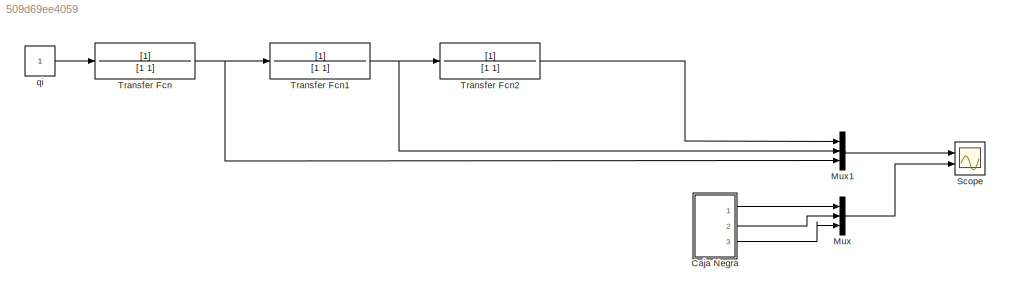
MODEL slx_509d69ee4059
KIND model
CONFIG AbsTol = auto
CONFIG EnableMultiTasking = off
CONFIG FixedStep = auto
CONFIG MaxStep = auto
CONFIG MinStep = auto
CONFIG RelTol = 1e-3
CONFIG SampleTimeConstraint = Unconstrained
CONFIG Solver = VariableStepAuto
CONFIG SolverName = VariableStepAuto
CONFIG StartTime = 0.0
CONFIG StopTime = 10.0
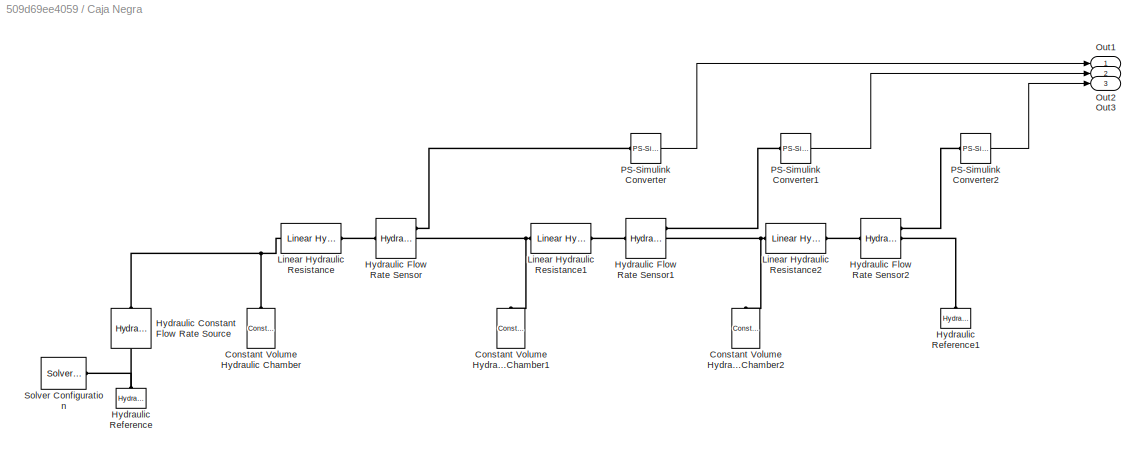
BLOCK [SubSystem] Caja Negra
  Ports = [0, 3]
  RequestExecContextInheritance = off
  Variant = off
BLOCK [Reference] Caja Negra/Constant Volume Hydraulic Chamber  REF=fl_lib/Hydraulic/Hydraulic Elements/Constant Volume
Hydraulic Chamber
  Ports = [0, 0, 0, 0, 0, 1]
  SourceBlock = fl_lib/Hydraulic/Hydraulic Elements/Constant Volume\nHydraulic Chamber
  SourceProductBaseCode = SS
  SourceProductName = Simscape
  SourceType = Constant Volume\nHydraulic Chamber
BLOCK [Reference] Caja Negra/Constant Volume Hydraulic Chamber1  REF=fl_lib/Hydraulic/Hydraulic Elements/Constant Volume
Hydraulic Chamber
  Ports = [0, 0, 0, 0, 0, 1]
  SourceBlock = fl_lib/Hydraulic/Hydraulic Elements/Constant Volume\nHydraulic Chamber
  SourceProductBaseCode = SS
  SourceProductName = Simscape
  SourceType = Constant Volume\nHydraulic Chamber
BLOCK [Reference] Caja Negra/Constant Volume Hydraulic Chamber2  REF=fl_lib/Hydraulic/Hydraulic Elements/Constant Volume
Hydraulic Chamber
  Ports = [0, 0, 0, 0, 0, 1]
  SourceBlock = fl_lib/Hydraulic/Hydraulic Elements/Constant Volume\nHydraulic Chamber
  SourceProductBaseCode = SS
  SourceProductName = Simscape
  SourceType = Constant Volume\nHydraulic Chamber
BLOCK [Reference] Caja Negra/Hydraulic Constant Flow Rate Source  REF=fl_lib/Hydraulic/Hydraulic Sources/Hydraulic Constant
Flow Rate Source
  Ports = [0, 0, 0, 0, 0, 1, 1]
  SourceBlock = fl_lib/Hydraulic/Hydraulic Sources/Hydraulic Constant\nFlow Rate Source
  SourceProductBaseCode = SS
  SourceProductName = Simscape
  SourceType = Hydraulic Constant\nFlow Rate Source
BLOCK [Reference] Caja Negra/Hydraulic Flow Rate Sensor  REF=fl_lib/Hydraulic/Hydraulic Sensors/Hydraulic Flow Rate
Sensor
  Ports = [0, 0, 0, 0, 0, 1, 3]
  SourceBlock = fl_lib/Hydraulic/Hydraulic Sensors/Hydraulic Flow Rate\nSensor
  SourceProductBaseCode = SS
  SourceProductName = Simscape
  SourceType = Hydraulic Flow Rate\nSensor
BLOCK [Reference] Caja Negra/Hydraulic Flow Rate Sensor1  REF=fl_lib/Hydraulic/Hydraulic Sensors/Hydraulic Flow Rate
Sensor
  Ports = [0, 0, 0, 0, 0, 1, 3]
  SourceBlock = fl_lib/Hydraulic/Hydraulic Sensors/Hydraulic Flow Rate\nSensor
  SourceProductBaseCode = SS
  SourceProductName = Simscape
  SourceType = Hydraulic Flow Rate\nSensor
BLOCK [Reference] Caja Negra/Hydraulic Flow Rate Sensor2  REF=fl_lib/Hydraulic/Hydraulic Sensors/Hydraulic Flow Rate
Sensor
  Ports = [0, 0, 0, 0, 0, 1, 3]
  SourceBlock = fl_lib/Hydraulic/Hydraulic Sensors/Hydraulic Flow Rate\nSensor
  SourceProductBaseCode = SS
  SourceProductName = Simscape
  SourceType = Hydraulic Flow Rate\nSensor
BLOCK [Reference] Caja Negra/Hydraulic Reference  REF=fl_lib/Hydraulic/Hydraulic Elements/Hydraulic Reference
  Ports = [0, 0, 0, 0, 0, 1]
  SourceBlock = fl_lib/Hydraulic/Hydraulic Elements/Hydraulic Reference
  SourceProductBaseCode = SS
  SourceProductName = Simscape
  SourceType = Hydraulic Reference
BLOCK [Reference] Caja Negra/Hydraulic Reference1  REF=fl_lib/Hydraulic/Hydraulic Elements/Hydraulic Reference
  Ports = [0, 0, 0, 0, 0, 1]
  SourceBlock = fl_lib/Hydraulic/Hydraulic Elements/Hydraulic Reference
  SourceProductBaseCode = SS
  SourceProductName = Simscape
  SourceType = Hydraulic Reference
BLOCK [Reference] Caja Negra/Linear Hydraulic Resistance  REF=fl_lib/Hydraulic/Hydraulic Elements/Linear Hydraulic
Resistance
  Ports = [0, 0, 0, 0, 0, 1, 1]
  SourceBlock = fl_lib/Hydraulic/Hydraulic Elements/Linear Hydraulic\nResistance
  SourceProductBaseCode = SS
  SourceProductName = Simscape
  SourceType = Linear Hydraulic\nResistance
BLOCK [Reference] Caja Negra/Linear Hydraulic Resistance1  REF=fl_lib/Hydraulic/Hydraulic Elements/Linear Hydraulic
Resistance
  Ports = [0, 0, 0, 0, 0, 1, 1]
  SourceBlock = fl_lib/Hydraulic/Hydraulic Elements/Linear Hydraulic\nResistance
  SourceProductBaseCode = SS
  SourceProductName = Simscape
  SourceType = Linear Hydraulic\nResistance
BLOCK [Reference] Caja Negra/Linear Hydraulic Resistance2  REF=fl_lib/Hydraulic/Hydraulic Elements/Linear Hydraulic
Resistance
  Ports = [0, 0, 0, 0, 0, 1, 1]
  SourceBlock = fl_lib/Hydraulic/Hydraulic Elements/Linear Hydraulic\nResistance
  SourceProductBaseCode = SS
  SourceProductName = Simscape
  SourceType = Linear Hydraulic\nResistance
BLOCK [Outport] Caja Negra/Out1
  IconDisplay = Port number
BLOCK [Outport] Caja Negra/Out2
  IconDisplay = Port number
  Port = 2
BLOCK [Outport] Caja Negra/Out3
  IconDisplay = Port number
  Port = 3
BLOCK [Reference] Caja Negra/PS-Simulink Converter  REF=nesl_utility/PS-Simulink
Converter
  Ports = [0, 1, 0, 0, 0, 1]
  SourceBlock = nesl_utility/PS-Simulink\nConverter
  SourceProductBaseCode = SS
  SourceProductName = Simscape
  SourceType = PS-Simulink\nConverter
BLOCK [Reference] Caja Negra/PS-Simulink Converter1  REF=nesl_utility/PS-Simulink
Converter
  Ports = [0, 1, 0, 0, 0, 1]
  SourceBlock = nesl_utility/PS-Simulink\nConverter
  SourceProductBaseCode = SS
  SourceProductName = Simscape
  SourceType = PS-Simulink\nConverter
BLOCK [Reference] Caja Negra/PS-Simulink Converter2  REF=nesl_utility/PS-Simulink
Converter
  Ports = [0, 1, 0, 0, 0, 1]
  SourceBlock = nesl_utility/PS-Simulink\nConverter
  SourceProductBaseCode = SS
  SourceProductName = Simscape
  SourceType = PS-Simulink\nConverter
BLOCK [Reference] Caja Negra/Solver Configuration  REF=nesl_utility/Solver
Configuration
  Ports = [0, 0, 0, 0, 0, 0, 1]
  SourceBlock = nesl_utility/Solver\nConfiguration
  SourceProductBaseCode = SS
  SourceProductName = Simscape
  SourceType = Solver\nConfiguration
BLOCK [Mux] Mux
  DisplayOption = bar
  Inputs = 3
  Ports = [3, 1]
BLOCK [Mux] Mux1
  DisplayOption = bar
  Inputs = 3
  Ports = [3, 1]
BLOCK [Scope] Scope
  NumInputPorts = 2
  Ports = [2]
  ScopeSpecificationString = Simulink.scopes.TimeScopeBlockCfg('CurrentConfiguration', extmgr.ConfigurationSet(extmgr.Configuration('Core','General UI',true),extmgr.Configuration('Core','Source UI',true),extmgr.Configuration('Sources','WiredSimulink',true),extmgr.Configuration('Visuals','Time Domain',true,'SerializedDisplays',{struct('MinYLimReal','-1.25','MaxYLimReal','11.25','YLabelReal','','MinYLimMag','0.00000','MaxYLimMa...<+1466ch>
BLOCK [TransferFcn] Transfer Fcn
  Denominator = [1 1]
BLOCK [TransferFcn] Transfer Fcn1
  Denominator = [1 1]
BLOCK [TransferFcn] Transfer Fcn2
  Denominator = [1 1]
BLOCK [Constant] qi
LINE Caja Negra/PS-Simulink Converter1:1 -> Caja Negra/Out2:1
LINE Caja Negra/PS-Simulink Converter2:1 -> Caja Negra/Out3:1
LINE Caja Negra/PS-Simulink Converter:1 -> Caja Negra/Out1:1
LINE Caja Negra:1 -> Mux:1
LINE Caja Negra:2 -> Mux:2
LINE Caja Negra:3 -> Mux:3
LINE Mux1:1 -> Scope:1
LINE Mux:1 -> Scope:2
NET Transfer Fcn1:1 -> Mux1:2, Transfer Fcn2:1
LINE Transfer Fcn2:1 -> Mux1:1
NET Transfer Fcn:1 -> Mux1:3, Transfer Fcn1:1
LINE qi:1 -> Transfer Fcn:1
PNET net1: Caja Negra/Constant Volume Hydraulic Chamber1:LConn1 -- Caja Negra/Hydraulic Flow Rate Sensor:RConn2 -- Caja Negra/Linear Hydraulic Resistance1:LConn1
PNET net2: Caja Negra/Constant Volume Hydraulic Chamber2:LConn1 -- Caja Negra/Hydraulic Flow Rate Sensor1:RConn2 -- Caja Negra/Linear Hydraulic Resistance2:LConn1
PNET net3: Caja Negra/Constant Volume Hydraulic Chamber:LConn1 -- Caja Negra/Hydraulic Constant Flow Rate Source:LConn1 -- Caja Negra/Linear Hydraulic Resistance:LConn1
PNET net4: Caja Negra/Hydraulic Constant Flow Rate Source:RConn1 -- Caja Negra/Hydraulic Reference:LConn1 -- Caja Negra/Solver Configuration:RConn1
PLINE Caja Negra/Hydraulic Flow Rate Sensor1:LConn1 -- Caja Negra/Linear Hydraulic Resistance1:RConn1
PLINE Caja Negra/Hydraulic Flow Rate Sensor1:RConn1 -- Caja Negra/PS-Simulink Converter1:LConn1
PLINE Caja Negra/Hydraulic Flow Rate Sensor2:LConn1 -- Caja Negra/Linear Hydraulic Resistance2:RConn1
PLINE Caja Negra/Hydraulic Flow Rate Sensor2:RConn1 -- Caja Negra/PS-Simulink Converter2:LConn1
PLINE Caja Negra/Hydraulic Flow Rate Sensor2:RConn2 -- Caja Negra/Hydraulic Reference1:LConn1
PLINE Caja Negra/Hydraulic Flow Rate Sensor:LConn1 -- Caja Negra/Linear Hydraulic Resistance:RConn1
PLINE Caja Negra/Hydraulic Flow Rate Sensor:RConn1 -- Caja Negra/PS-Simulink Converter:LConn1
note: NET lines group one-source signal fan-out (src -> all destinations, sorted); 1:1 wires keep LINE; PNET lines group multi-terminal physical nets as a canonical sorted terminal list (undirected conserving connections); 2-terminal nets keep the pairwise PLINE form
